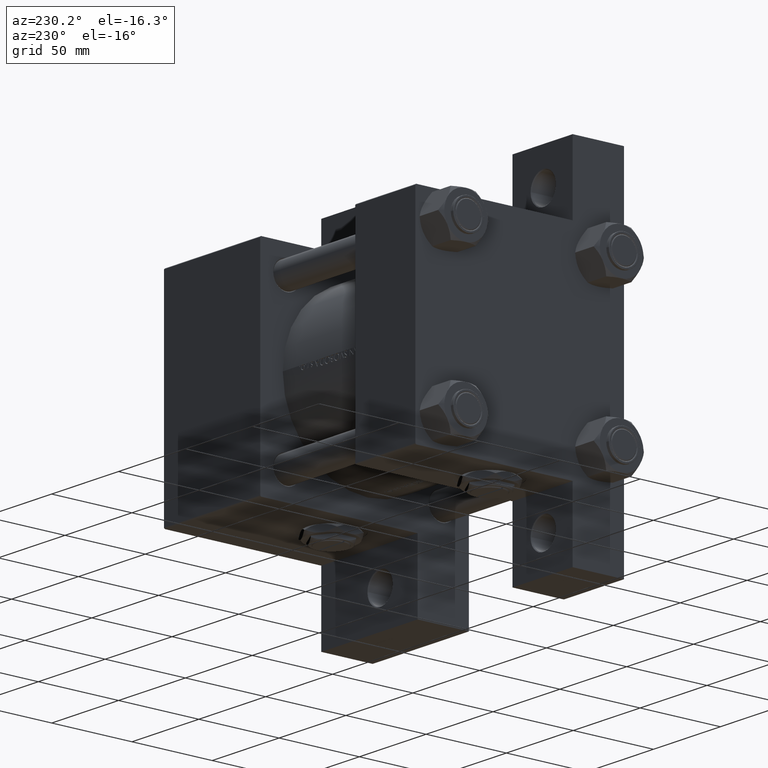
[diagram: clean part render]
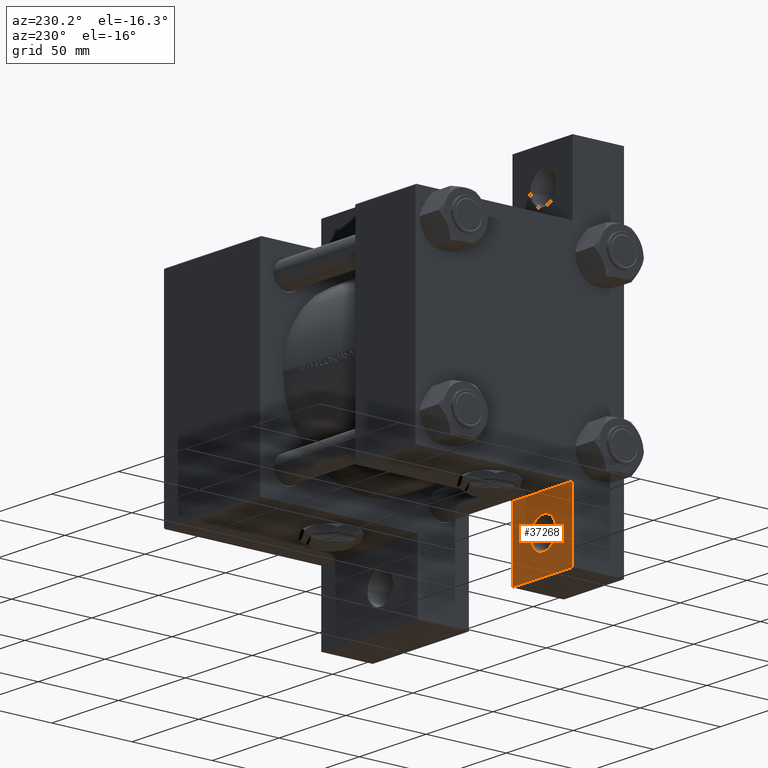
[diagram: same view with one face highlighted and labeled with its STEP entity id]
A machine part, auxiliary view. The second image highlights one B-rep face of the part: STEP entity #37268.
In plain terms, the highlighted planar face has unit normal (0, -1, 0).
Its self-contained STEP definition (entity closure, byte-faithful):
#2584 = AXIS2_PLACEMENT_3D ( 'NONE', #24946, #47987, #46993 ) ;
#3939 = VERTEX_POINT ( 'NONE', #22533 ) ;
#4621 = CARTESIAN_POINT ( 'NONE',  ( 2.598273009909439483E-14, 108.0000000000000284, -33.00000000000000000 ) ) ;
#5159 = DIRECTION ( 'NONE',  ( -1.000000000000000000, 0.000000000000000000, 0.000000000000000000 ) ) ;
#5894 = VECTOR ( 'NONE', #49836, 1000.000000000000000 ) ;
#5896 = CARTESIAN_POINT ( 'NONE',  ( 31.49950000000004735, 86.00000000000000000, -33.00000000000000000 ) ) ;
#7283 = EDGE_CURVE ( 'NONE', #43146, #3939, #36019, .T. ) ;
#7857 = EDGE_CURVE ( 'NONE', #17693, #44531, #17947, .T. ) ;
#7964 = FACE_BOUND ( 'NONE', #36426, .T. ) ;
#9663 = DIRECTION ( 'NONE',  ( 1.000000000000000000, 0.000000000000000000, 0.000000000000000000 ) ) ;
#9972 = CARTESIAN_POINT ( 'NONE',  ( 45.00000000000002842, 108.0000000000000284, -33.00000000000000000 ) ) ;
#10108 = DIRECTION ( 'NONE',  ( -2.102829850353463349E-16, -1.000000000000000000, 0.000000000000000000 ) ) ;
#12544 = CIRCLE ( 'NONE', #40880, 9.499500000000049127 ) ;
#13718 = LINE ( 'NONE', #21322, #27272 ) ;
#15327 = DIRECTION ( 'NONE',  ( -1.000000000000000000, 0.000000000000000000, -0.000000000000000000 ) ) ;
#17131 = AXIS2_PLACEMENT_3D ( 'NONE', #39132, #35331, #15327 ) ;
#17298 = VERTEX_POINT ( 'NONE', #19954 ) ;
#17693 = VERTEX_POINT ( 'NONE', #5896 ) ;
#17947 = CIRCLE ( 'NONE', #2584, 9.499500000000049127 ) ;
#19954 = CARTESIAN_POINT ( 'NONE',  ( 45.00000000000001421, 65.00000000000004263, -33.00000000000000000 ) ) ;
#21052 = EDGE_CURVE ( 'NONE', #44531, #17693, #12544, .T. ) ;
#21322 = CARTESIAN_POINT ( 'NONE',  ( 1.694056174257450573E-14, 65.00000000000004263, -33.00000000000000000 ) ) ;
#22210 = CARTESIAN_POINT ( 'NONE',  ( 12.50049999999994910, 86.00000000000000000, -33.00000000000000000 ) ) ;
#22533 = CARTESIAN_POINT ( 'NONE',  ( 2.598273009909439483E-14, 108.0000000000000284, -33.00000000000000000 ) ) ;
#22726 = CARTESIAN_POINT ( 'NONE',  ( 45.00000000000002842, 108.0000000000000426, -33.00000000000000000 ) ) ;
#23339 = ORIENTED_EDGE ( 'NONE', *, *, #21052, .T. ) ;
#23422 = PLANE ( 'NONE',  #17131 ) ;
#24946 = CARTESIAN_POINT ( 'NONE',  ( 22.00000000000000000, 86.00000000000000000, -33.00000000000000000 ) ) ;
#25108 = VECTOR ( 'NONE', #10108, 1000.000000000000000 ) ;
#26635 = ORIENTED_EDGE ( 'NONE', *, *, #35773, .T. ) ;
#26754 = VERTEX_POINT ( 'NONE', #35330 ) ;
#27272 = VECTOR ( 'NONE', #9663, 1000.000000000000000 ) ;
#28050 = ORIENTED_EDGE ( 'NONE', *, *, #7283, .T. ) ;
#28154 = ORIENTED_EDGE ( 'NONE', *, *, #29494, .T. ) ;
#28170 = EDGE_CURVE ( 'NONE', #26754, #17298, #13718, .T. ) ;
#29494 = EDGE_CURVE ( 'NONE', #3939, #26754, #33188, .T. ) ;
#33188 = LINE ( 'NONE', #37717, #25108 ) ;
#34396 = LINE ( 'NONE', #22726, #5894 ) ;
#35330 = CARTESIAN_POINT ( 'NONE',  ( 0.000000000000000000, 65.00000000000000000, -33.00000000000000000 ) ) ;
#35331 = DIRECTION ( 'NONE',  ( 0.000000000000000000, 0.000000000000000000, -1.000000000000000000 ) ) ;
#35773 = EDGE_CURVE ( 'NONE', #17298, #43146, #34396, .T. ) ;
#36019 = LINE ( 'NONE', #4621, #46243 ) ;
#36426 = EDGE_LOOP ( 'NONE', ( #41055, #23339 ) ) ;
#36577 = DIRECTION ( 'NONE',  ( 0.000000000000000000, 0.000000000000000000, -1.000000000000000000 ) ) ;
#37268 = ADVANCED_FACE ( 'NONE', ( #7964, #42688 ), #23422, .F. ) ;
#37717 = CARTESIAN_POINT ( 'NONE',  ( 2.598273009909439798E-14, 108.0000000000000426, -33.00000000000000000 ) ) ;
#37915 = EDGE_LOOP ( 'NONE', ( #28154, #47038, #26635, #28050 ) ) ;
#39132 = CARTESIAN_POINT ( 'NONE',  ( 0.000000000000000000, 0.000000000000000000, -33.00000000000000000 ) ) ;
#39325 = DIRECTION ( 'NONE',  ( -1.000000000000000000, 0.000000000000000000, 0.000000000000000000 ) ) ;
#39626 = CARTESIAN_POINT ( 'NONE',  ( 22.00000000000000000, 86.00000000000000000, -33.00000000000000000 ) ) ;
#40880 = AXIS2_PLACEMENT_3D ( 'NONE', #39626, #36577, #5159 ) ;
#41055 = ORIENTED_EDGE ( 'NONE', *, *, #7857, .T. ) ;
#42688 = FACE_OUTER_BOUND ( 'NONE', #37915, .T. ) ;
#43146 = VERTEX_POINT ( 'NONE', #9972 ) ;
#44531 = VERTEX_POINT ( 'NONE', #22210 ) ;
#46243 = VECTOR ( 'NONE', #39325, 1000.000000000000000 ) ;
#46993 = DIRECTION ( 'NONE',  ( -1.000000000000000000, 0.000000000000000000, 0.000000000000000000 ) ) ;
#47038 = ORIENTED_EDGE ( 'NONE', *, *, #28170, .T. ) ;
#47987 = DIRECTION ( 'NONE',  ( 0.000000000000000000, 0.000000000000000000, -1.000000000000000000 ) ) ;
#49836 = DIRECTION ( 'NONE',  ( 3.227392513445223797E-16, 1.000000000000000000, 0.000000000000000000 ) ) ;